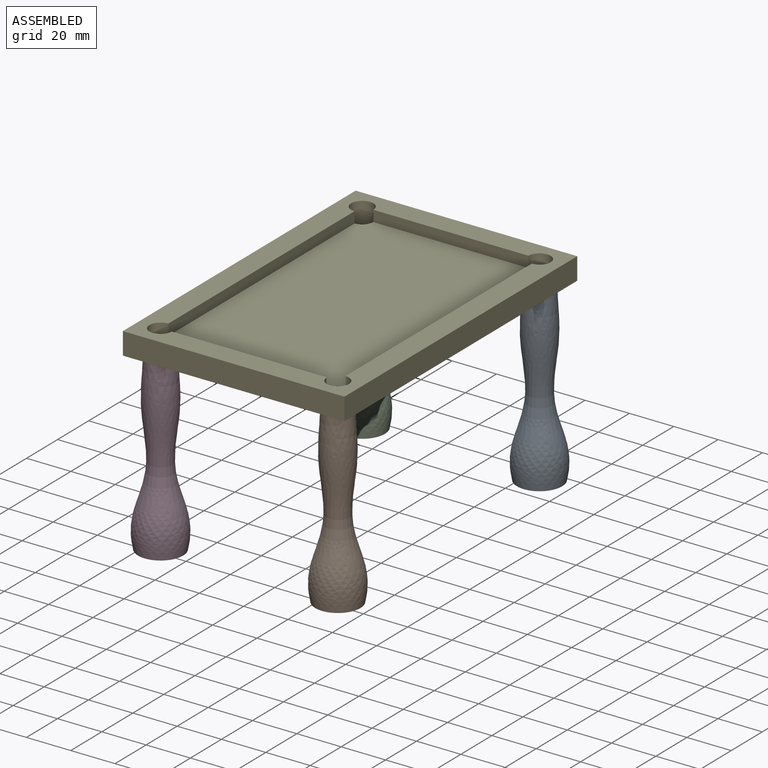
[diagram: assembled view]
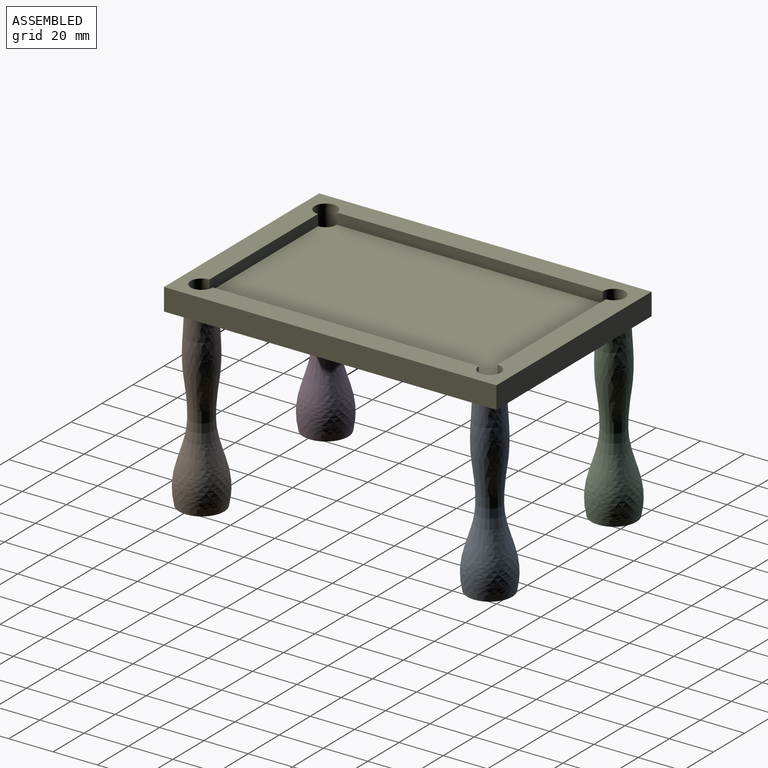
[diagram: assembled view, second angle]
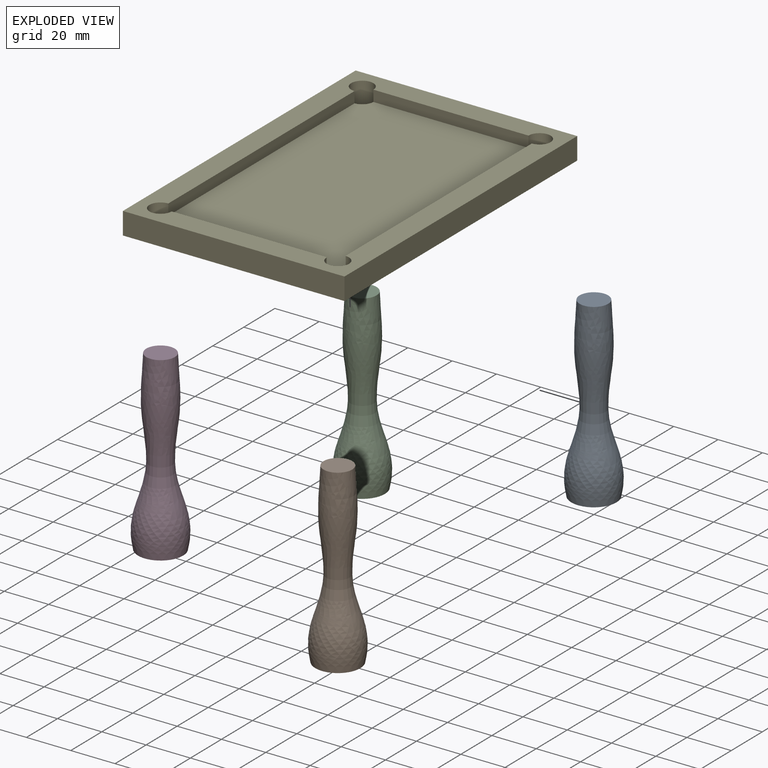
[diagram: exploded view]
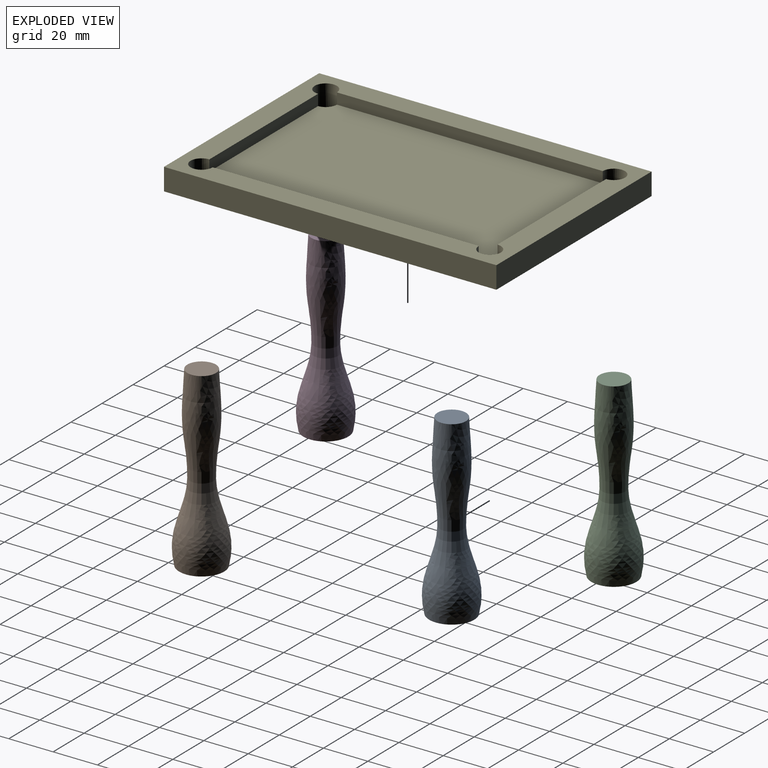
[diagram: exploded view, second angle]
ASSEMBLY  parts=5 mates=4
PART A: 3 faces, bbox 22x22x80 mm
  f0: plane 20.33x20.33mm, normal (0,0,-1), area 324.5mm2, adj f2
  f1: plane 12.91x12.91mm, normal (0,0,1), area 130.8mm2, adj f2
  f2: revolved ~80x22.05mm, area 3834mm2, adj f0,f1
PART B: same geometry as A
PART C: same geometry as A
PART D: same geometry as A
PART E: 15 faces, bbox 100x150x10 mm
  f0: plane 100x10mm, normal (0,1,0), area 1000mm2, adj f1,f11,f12,f13
  f1: plane 150x10mm, normal (-1,0,0), area 1500mm2, adj f0,f2,f12,f13
  f2: plane 100x10mm, normal (0,-1,0), area 1000mm2, adj f1,f11,f12,f13
  f3: cylinder r=5mm len=10mm, axis (0,0,-1), area 274.9mm2, adj f4,f10,f12,f13,f14
  f4: plane 120x5mm, normal (-1,0,0), area 600mm2, adj f3,f5,f12,f14
  f5: cylinder r=5mm len=10mm, axis (0,0,-1), area 274.9mm2, adj f4,f6,f12,f13,f14
  f6: plane 70x5mm, normal (0,1,0), area 350mm2, adj f5,f7,f12,f14
  f7: cylinder r=5mm len=10mm, axis (0,0,-1), area 274.9mm2, adj f6,f8,f12,f13,f14
  f8: plane 120x5mm, normal (1,0,0), area 600mm2, adj f7,f9,f12,f14
  f9: cylinder r=5mm len=10mm, axis (0,0,-1), area 274.9mm2, adj f8,f10,f12,f13,f14
  f10: plane 70x5mm, normal (0,-1,0), area 350mm2, adj f3,f9,f12,f14
  f11: plane 150x10mm, normal (1,0,0), area 1500mm2, adj f0,f2,f12,f13
  f12: plane 150x100mm, normal (0,0,1), area 4364.4mm2, adj f0,f1,f2,f3,f4,f5,f6,f7
  f13: plane 150x100mm, normal (0,0,-1), area 14685.8mm2, adj f0,f1,f2,f3,f5,f7,f9,f11
  f14: plane 130x80mm, normal (0,0,1), area 10321.5mm2, adj f3,f4,f5,f6,f7,f8,f9,f10
PLACE A t=(40,65,-80)mm
PLACE B t=(40,-65,-80)mm
PLACE C t=(-40,65,-80)mm
PLACE D t=(-40,-65,-80)mm
PLACE E at identity fixed
MATE cylindrical D.f1 <-> E.f7  axis (0,0,1) through (-40,-65,0)mm
MATE cylindrical A.f1 <-> A.f1  axis (0,0,1) through (40,65,0)mm
MATE cylindrical B.f1 <-> E.f5  axis (0,0,1) through (40,-65,0)mm
MATE cylindrical C.f1 <-> E.f9  axis (0,0,1) through (-40,65,0)mm
